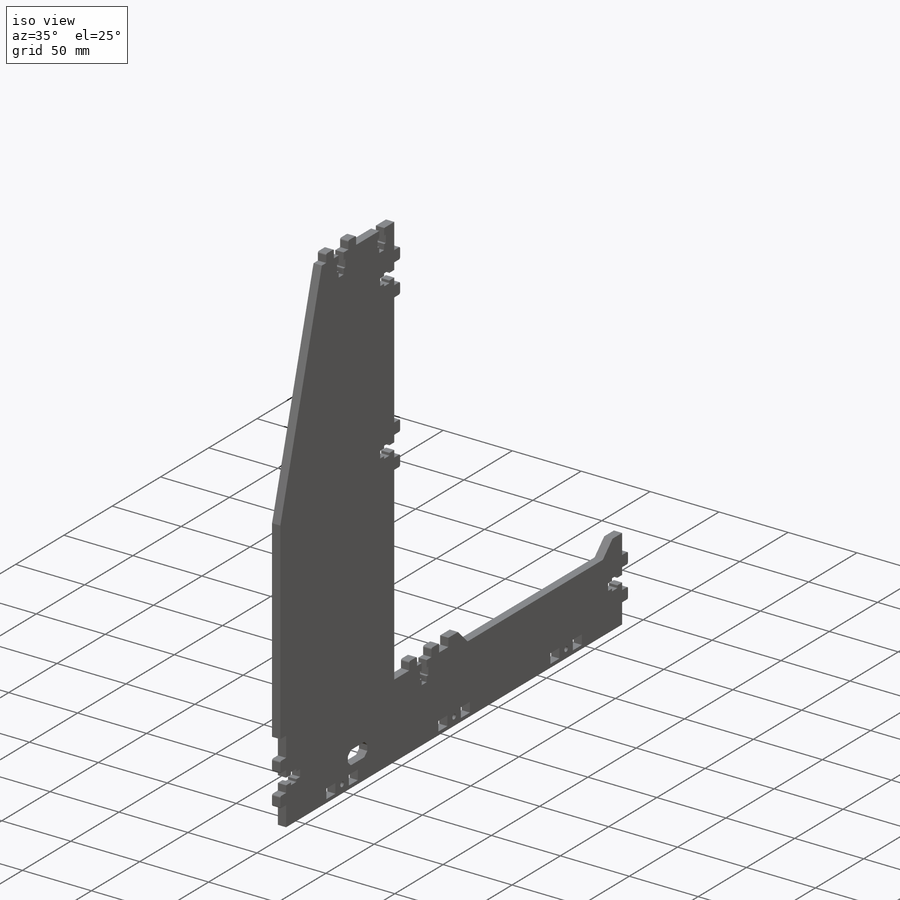
[diagram: iso view]
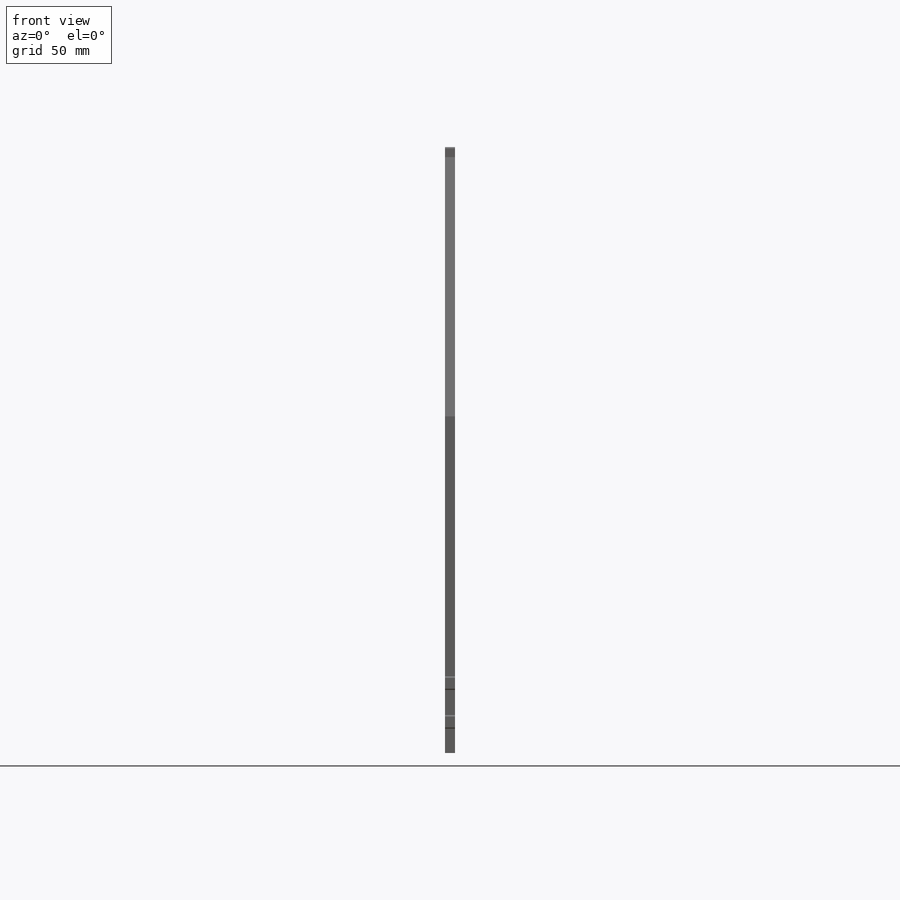
[diagram: front view]
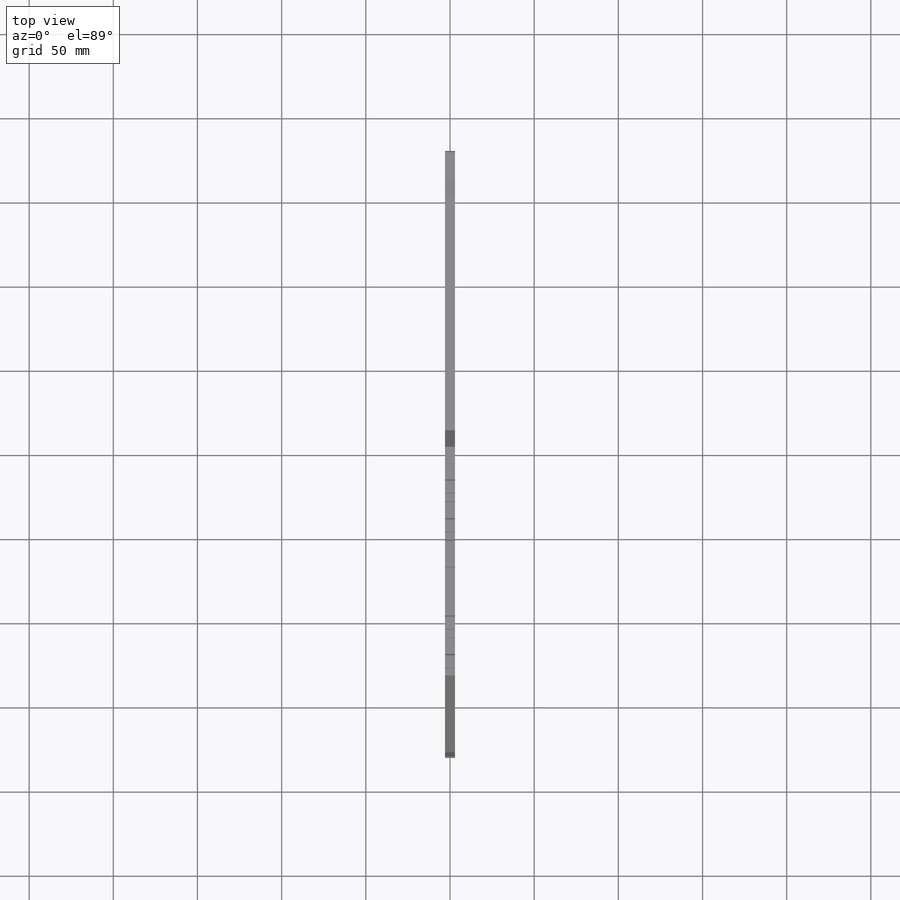
[diagram: top view]
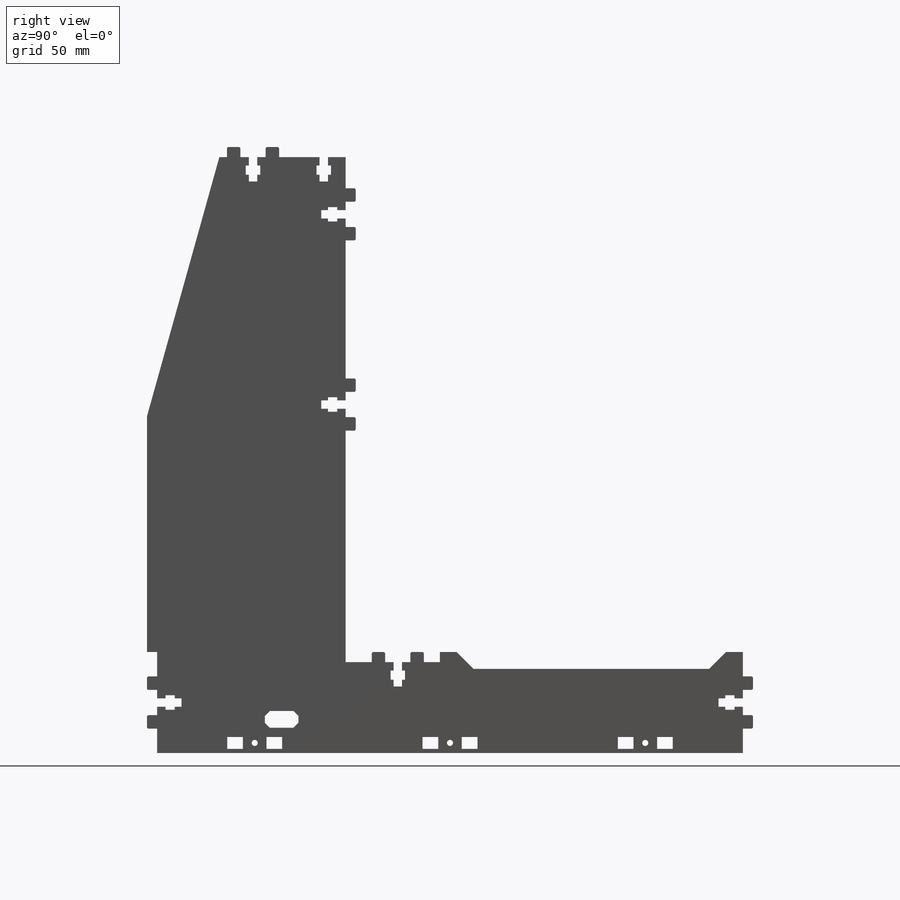
[diagram: right view]
SOLIDWORKS PART (.sldprt)
format: sldprt  version: not decoded by parser v0  size: 915,456 bytes
history: native  units: mm
features: plane x3, sketch x3, extrude x2, material x1, cut_extrude x1 + 4 further entries (+20 scaffold rows collapsed)
feature tree (34):
  scaffold x20  (default folders/planes/origin — collapsed)
  material  "Matériau <non spécifié>"
  plane  "Plan de face"
  plane  "Plan de dessus"
  plane  "Plan de droite"
  "Famille de pièces"
  sketch  "Esquisse2"  dims[D1=3.6mm D2=9.3mm D3=7.0mm D4=7.0mm]
  "attache_femelle-5"  s=175mm
  extrude  "Boss.-Extru.1"  Depth=6mm
  "Esquisse4"
  sketch  "attache_male"  dims[D7=1.0mm D1=5.0mm D2=5.0mm D3=5.5mm D4=1.8mm D5=4.0mm D6=2.5mm]
  sketch  "cable_hole"  dims[c1.D1=20.0mm c1.D2=10.0mm c2.D1=13.0mm c2.D2=20.0mm c2.D3=42.0mm c3.D1=20.0mm c3.D2=13.0mm c3.D3=34.0mm c3.D4=6.0mm c3.D5=6.0mm c3.D6=100.0mm c3.D7=20.0mm]
  extrude  "Boss.-Extru.2"  Depth=6mm
  cut_extrude  "Enlèv. mat.-Extru.1"  [1 undecoded]
  "Esquisse4<3>"
decode coverage: 5 of 6 modeling features carry decoded parameters; 4 rows unclassified (native names shown)
note: 1 parameter value undecoded
note: suppression state not decoded; provenance and decode notes live in map.json
